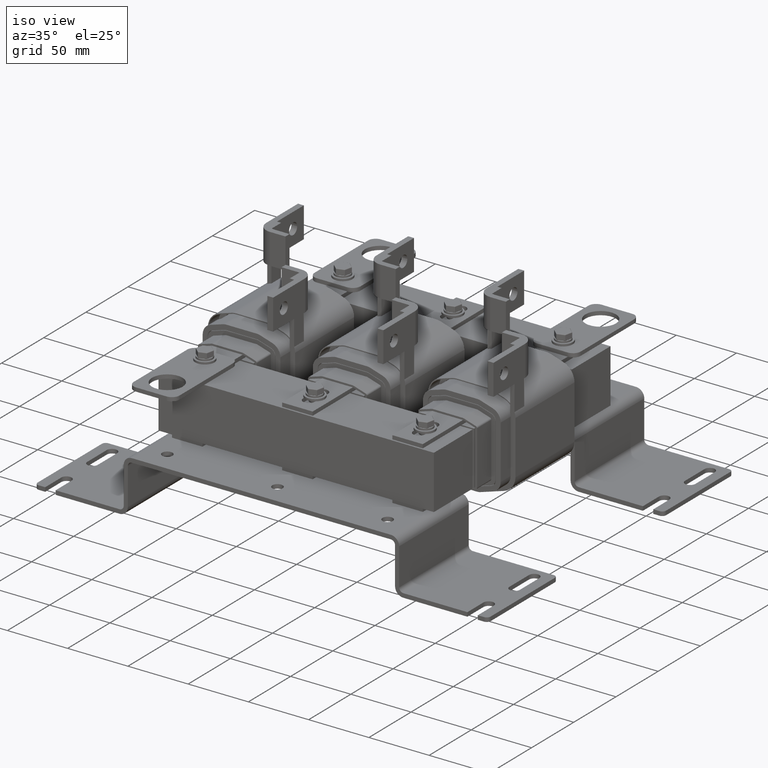
[diagram: clean part render]
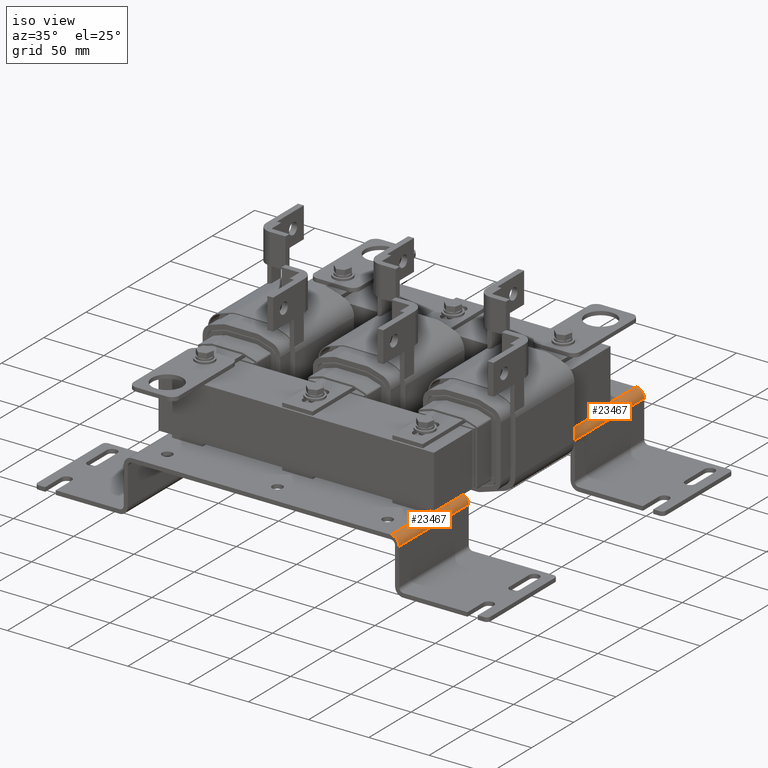
[diagram: same view with one multi-face feature highlighted, each face labeled with its STEP entity id]
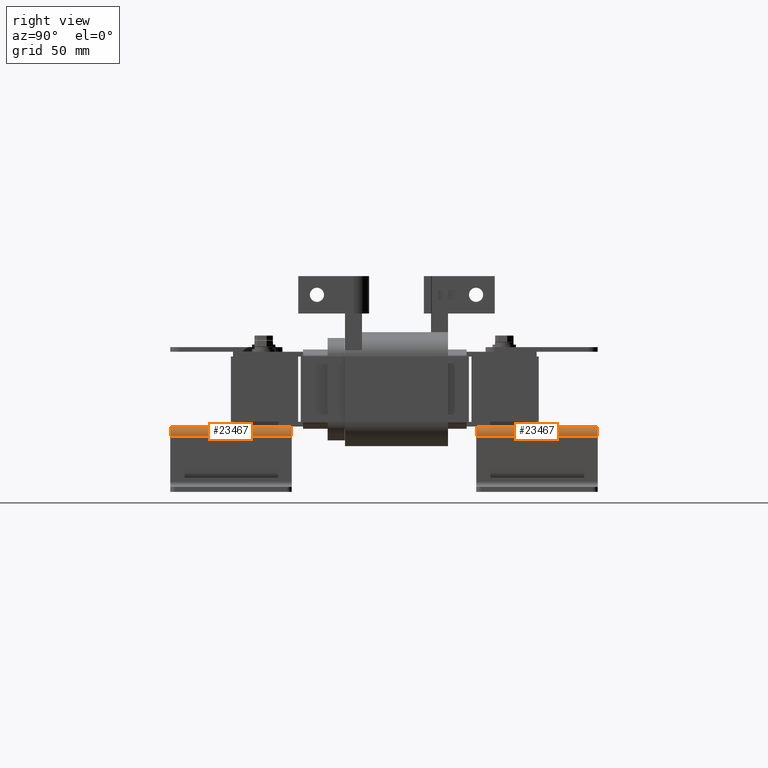
[diagram: same view with one multi-face feature highlighted, each face labeled with its STEP entity id]
A machine part, iso view. The highlighted faces form ONE feature: a constant-radius fillet chain: 2 tangent blend faces with common blend radius 6.8326 mm. The faces share edges in the B-rep.
A second angle (right view) of the same feature is appended — it is thin or edge-on in the first view.
Their STEP definitions:
[1] entity #23467 (Cylinder):
#2151=FACE_OUTER_BOUND('',#3479,.T.);
#3479=EDGE_LOOP('',(#18335,#18336,#18337,#18338));
#5271=LINE('',#38202,#7650);
#5278=LINE('',#38224,#7657);
#7650=VECTOR('',#28481,0.393700787401575);
#7657=VECTOR('',#28508,0.393700787401575);
#9182=CIRCLE('',#25108,0.269);
#9183=CIRCLE('',#25110,0.269);
#10746=VERTEX_POINT('',#38194);
#10748=VERTEX_POINT('',#38200);
#10752=VERTEX_POINT('',#38215);
#10753=VERTEX_POINT('',#38219);
#13503=EDGE_CURVE('',#10748,#10746,#5271,.T.);
#13510=EDGE_CURVE('',#10752,#10746,#9182,.T.);
#13513=EDGE_CURVE('',#10753,#10748,#9183,.T.);
#13514=EDGE_CURVE('',#10752,#10753,#5278,.T.);
#18335=ORIENTED_EDGE('',*,*,#13503,.F.);
#18336=ORIENTED_EDGE('',*,*,#13513,.F.);
#18337=ORIENTED_EDGE('',*,*,#13514,.F.);
#18338=ORIENTED_EDGE('',*,*,#13510,.T.);
#22614=CYLINDRICAL_SURFACE('',#25112,0.269);
#23467=ADVANCED_FACE('',(#2151),#22614,.T.);
#25108=AXIS2_PLACEMENT_3D('',#38216,#28496,#28497);
#25110=AXIS2_PLACEMENT_3D('',#38221,#28502,#28503);
#25112=AXIS2_PLACEMENT_3D('',#38223,#28506,#28507);
#28481=DIRECTION('',(-8.04646877818291E-18,-1.,1.38006957354638E-32));
#28496=DIRECTION('center_axis',(0.,1.,0.));
#28497=DIRECTION('ref_axis',(5.19965119983681E-15,0.,1.));
#28502=DIRECTION('center_axis',(0.,1.,0.));
#28503=DIRECTION('ref_axis',(0.,0.,1.));
#28506=DIRECTION('center_axis',(0.,1.,0.));
#28507=DIRECTION('ref_axis',(0.,0.,1.));
#28508=DIRECTION('',(0.,1.,0.));
#38194=CARTESIAN_POINT('',(9.,-3.11704096833116E-17,-0.134499999999999));
#38200=CARTESIAN_POINT('',(9.,3.25,-0.134499999999999));
#38202=CARTESIAN_POINT('',(9.,1.625,-0.134499999999999));
#38215=CARTESIAN_POINT('',(8.731,0.,0.1345));
#38216=CARTESIAN_POINT('Origin',(8.731,0.,-0.1345));
#38219=CARTESIAN_POINT('',(8.731,3.25,0.1345));
#38221=CARTESIAN_POINT('Origin',(8.731,3.25,-0.1345));
#38223=CARTESIAN_POINT('Origin',(8.731,1.625,-0.1345));
#38224=CARTESIAN_POINT('',(8.731,2.4375,0.1345));
[2] entity #23467 (Cylinder):
#2151=FACE_OUTER_BOUND('',#3479,.T.);
#3479=EDGE_LOOP('',(#18335,#18336,#18337,#18338));
#5271=LINE('',#38202,#7650);
#5278=LINE('',#38224,#7657);
#7650=VECTOR('',#28481,0.393700787401575);
#7657=VECTOR('',#28508,0.393700787401575);
#9182=CIRCLE('',#25108,0.269);
#9183=CIRCLE('',#25110,0.269);
#10746=VERTEX_POINT('',#38194);
#10748=VERTEX_POINT('',#38200);
#10752=VERTEX_POINT('',#38215);
#10753=VERTEX_POINT('',#38219);
#13503=EDGE_CURVE('',#10748,#10746,#5271,.T.);
#13510=EDGE_CURVE('',#10752,#10746,#9182,.T.);
#13513=EDGE_CURVE('',#10753,#10748,#9183,.T.);
#13514=EDGE_CURVE('',#10752,#10753,#5278,.T.);
#18335=ORIENTED_EDGE('',*,*,#13503,.F.);
#18336=ORIENTED_EDGE('',*,*,#13513,.F.);
#18337=ORIENTED_EDGE('',*,*,#13514,.F.);
#18338=ORIENTED_EDGE('',*,*,#13510,.T.);
#22614=CYLINDRICAL_SURFACE('',#25112,0.269);
#23467=ADVANCED_FACE('',(#2151),#22614,.T.);
#25108=AXIS2_PLACEMENT_3D('',#38216,#28496,#28497);
#25110=AXIS2_PLACEMENT_3D('',#38221,#28502,#28503);
#25112=AXIS2_PLACEMENT_3D('',#38223,#28506,#28507);
#28481=DIRECTION('',(-8.04646877818291E-18,-1.,1.38006957354638E-32));
#28496=DIRECTION('center_axis',(0.,1.,0.));
#28497=DIRECTION('ref_axis',(5.19965119983681E-15,0.,1.));
#28502=DIRECTION('center_axis',(0.,1.,0.));
#28503=DIRECTION('ref_axis',(0.,0.,1.));
#28506=DIRECTION('center_axis',(0.,1.,0.));
#28507=DIRECTION('ref_axis',(0.,0.,1.));
#28508=DIRECTION('',(0.,1.,0.));
#38194=CARTESIAN_POINT('',(9.,-3.11704096833116E-17,-0.134499999999999));
#38200=CARTESIAN_POINT('',(9.,3.25,-0.134499999999999));
#38202=CARTESIAN_POINT('',(9.,1.625,-0.134499999999999));
#38215=CARTESIAN_POINT('',(8.731,0.,0.1345));
#38216=CARTESIAN_POINT('Origin',(8.731,0.,-0.1345));
#38219=CARTESIAN_POINT('',(8.731,3.25,0.1345));
#38221=CARTESIAN_POINT('Origin',(8.731,3.25,-0.1345));
#38223=CARTESIAN_POINT('Origin',(8.731,1.625,-0.1345));
#38224=CARTESIAN_POINT('',(8.731,2.4375,0.1345));